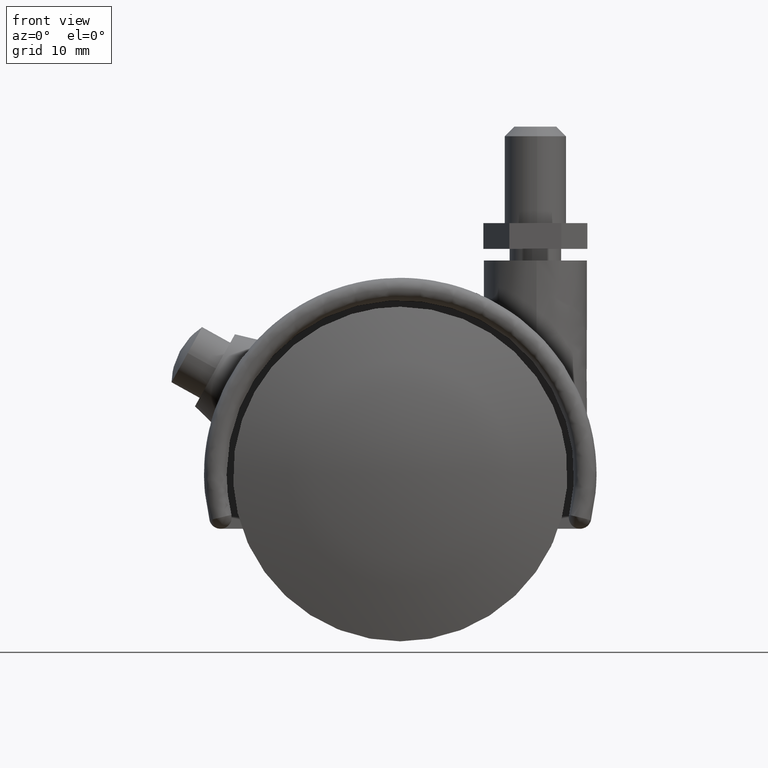
[diagram: clean part render]
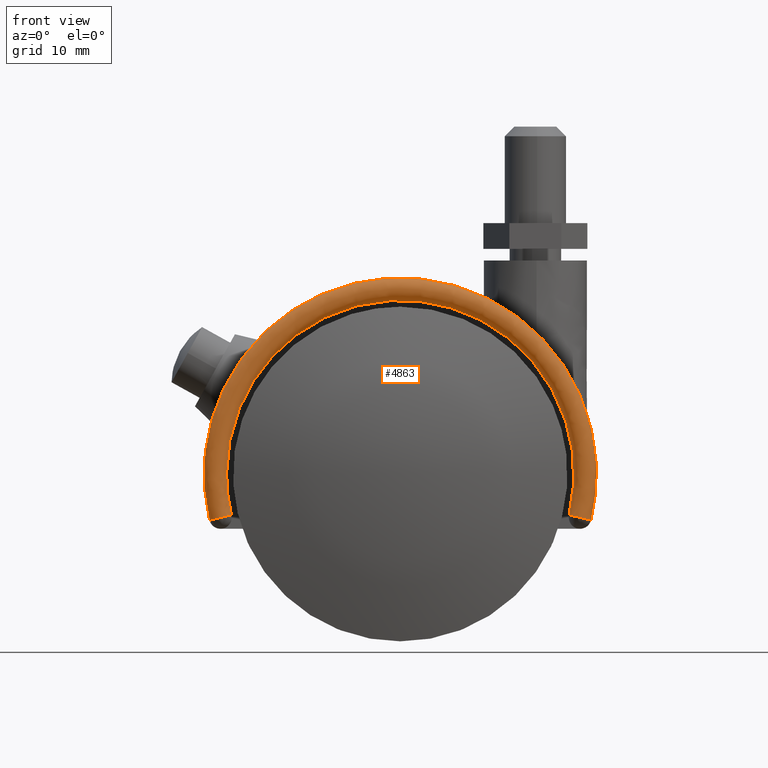
[diagram: same view with one face highlighted and labeled with its STEP entity id]
A machine part, front view. The second image highlights one B-rep face of the part: STEP entity #4863.
In plain terms, the highlighted face is a freeform B-spline surface patch.
Its self-contained STEP definition (entity closure, byte-faithful):
#4548=CARTESIAN_POINT('',(26.245293393879450,-17.100000000000001,-6.339130434782610));
#4549=VERTEX_POINT('',#4548);
#4550=CARTESIAN_POINT('',(29.647461056049000,-17.100000000000001,-7.160869565217389));
#4551=VERTEX_POINT('',#4550);
#4567=CARTESIAN_POINT('',(26.245293393879471,-17.100000000000001,-6.339130434782607));
#4568=CARTESIAN_POINT('',(26.245293393879471,-18.850000000000001,-6.339130434782606));
#4569=CARTESIAN_POINT('',(27.946377224964252,-18.850000000000001,-6.750000000000000));
#4570=CARTESIAN_POINT('',(29.647461056049032,-18.850000000000001,-7.160869565217391));
#4571=CARTESIAN_POINT('',(29.647461056049028,-17.100000000000001,-7.160869565217392));
#4579=(BOUNDED_CURVE()B_SPLINE_CURVE(2,(#4567,#4568,#4569,#4570,#4571),.UNSPECIFIED.,.F.,.U.)B_SPLINE_CURVE_WITH_KNOTS((3,2,3),(0.0,0.500000000000000,1.0),.UNSPECIFIED.)CURVE()GEOMETRIC_REPRESENTATION_ITEM()RATIONAL_B_SPLINE_CURVE((1.0,0.707106781186547,1.0,0.707106781186547,1.0))REPRESENTATION_ITEM(''));
#4580=EDGE_CURVE('',#4549,#4551,#4579,.T.);
#4686=CARTESIAN_POINT('',(-29.647461056049000,-17.100000000000001,-7.160869565217389));
#4687=VERTEX_POINT('',#4686);
#4688=CARTESIAN_POINT('',(-26.245293393879450,-17.100000000000001,-6.339130434782610));
#4689=VERTEX_POINT('',#4688);
#4705=CARTESIAN_POINT('',(-29.647461056049028,-17.100000000000001,-7.160869565217392));
#4706=CARTESIAN_POINT('',(-29.647461056049032,-18.850000000000001,-7.160869565217391));
#4707=CARTESIAN_POINT('',(-27.946377224964252,-18.850000000000001,-6.750000000000000));
#4708=CARTESIAN_POINT('',(-26.245293393879471,-18.850000000000001,-6.339130434782606));
#4709=CARTESIAN_POINT('',(-26.245293393879471,-17.100000000000001,-6.339130434782607));
#4717=(BOUNDED_CURVE()B_SPLINE_CURVE(2,(#4705,#4706,#4707,#4708,#4709),.UNSPECIFIED.,.F.,.U.)B_SPLINE_CURVE_WITH_KNOTS((3,2,3),(0.0,0.500000000000000,1.0),.UNSPECIFIED.)CURVE()GEOMETRIC_REPRESENTATION_ITEM()RATIONAL_B_SPLINE_CURVE((1.0,0.707106781186547,1.0,0.707106781186547,1.0))REPRESENTATION_ITEM(''));
#4718=EDGE_CURVE('',#4687,#4689,#4717,.T.);
#4792=CARTESIAN_POINT('',(-25.185691554705365,-16.851605150255413,-9.779470401126590));
#4793=CARTESIAN_POINT('',(-39.473844677437235,-16.851605150255409,27.017718268115608));
#4794=CARTESIAN_POINT('',(0.0,-16.851605150255413,27.017718268115608));
#4795=CARTESIAN_POINT('',(39.473844677437235,-16.851605150255409,27.017718268115608));
#4796=CARTESIAN_POINT('',(25.185691554705365,-16.851605150255413,-9.779470401126590));
#4797=CARTESIAN_POINT('',(-24.920258420872617,-18.837361050155266,-9.676404123587325));
#4798=CARTESIAN_POINT('',(-39.057828056476026,-18.837361050155270,26.732977322514046));
#4799=CARTESIAN_POINT('',(0.0,-18.837361050155266,26.732977322514053));
#4800=CARTESIAN_POINT('',(39.057828056476026,-18.837361050155270,26.732977322514046));
#4801=CARTESIAN_POINT('',(24.920258420872617,-18.837361050155266,-9.676404123587325));
#4802=CARTESIAN_POINT('',(-26.790260217185949,-18.849965456498239,-10.402515899290510));
#4803=CARTESIAN_POINT('',(-41.988704911450078,-18.849965456498239,28.739004498060265));
#4804=CARTESIAN_POINT('',(0.0,-18.849965456498239,28.739004498060272));
#4805=CARTESIAN_POINT('',(41.988704911450078,-18.849965456498239,28.739004498060265));
#4806=CARTESIAN_POINT('',(26.790260217185949,-18.849965456498239,-10.402515899290510));
#4807=CARTESIAN_POINT('',(-28.682797138259911,-18.862721756743156,-11.137377944371982));
#4808=CARTESIAN_POINT('',(-44.954901345108517,-18.862721756743149,30.769206020798681));
#4809=CARTESIAN_POINT('',(0.0,-18.862721756743156,30.769206020798681));
#4810=CARTESIAN_POINT('',(44.954901345108517,-18.862721756743149,30.769206020798681));
#4811=CARTESIAN_POINT('',(28.682797138259911,-18.862721756743156,-11.137377944371982));
#4812=CARTESIAN_POINT('',(-28.415492312924819,-16.852832187587520,-11.033584898953125));
#4813=CARTESIAN_POINT('',(-44.535951198995285,-16.852832187587524,30.482457235405022));
#4814=CARTESIAN_POINT('',(0.0,-16.852832187587520,30.482457235405011));
#4815=CARTESIAN_POINT('',(44.535951198995285,-16.852832187587524,30.482457235405022));
#4816=CARTESIAN_POINT('',(28.415492312924819,-16.852832187587520,-11.033584898953125));
#4824=(BOUNDED_SURFACE()B_SPLINE_SURFACE(2,2,((#4792,#4797,#4802,#4807,#4812),(#4793,#4798,#4803,#4808,#4813),(#4794,#4799,#4804,#4809,#4814),(#4795,#4800,#4805,#4810,#4815),(#4796,#4801,#4806,#4811,#4816)),.UNSPECIFIED.,.F.,.F.,.U.)B_SPLINE_SURFACE_WITH_KNOTS((3,2,3),(3,2,3),(0.0,64.300535283032460,128.601070566064890),(0.0,3.182820210840519,6.390598249175420),.UNSPECIFIED.)GEOMETRIC_REPRESENTATION_ITEM()RATIONAL_B_SPLINE_SURFACE(((0.987979751623804,0.653411634110615,1.0,0.650693889445690,0.993268612192045),(0.558027076611520,0.369057547391458,0.564816308931806,0.367522520881196,0.561014311316129),(0.987979751623804,0.653411634110615,1.0,0.650693889445690,0.993268612192045),(0.558027076611520,0.369057547391458,0.564816308931806,0.367522520881196,0.561014311316129),(0.987979751623804,0.653411634110615,1.0,0.650693889445690,0.993268612192045)))REPRESENTATION_ITEM('')SURFACE());
#4825=CARTESIAN_POINT('',(-29.647461056049011,-17.100000000000001,-7.160869565217417));
#4826=CARTESIAN_POINT('',(-34.573825898210522,-17.099999999999998,13.235286023945019));
#4827=CARTESIAN_POINT('',(-17.286912949105261,-17.100000000000001,25.127925515053111));
#4828=CARTESIAN_POINT('',(1.040834E-014,-17.099999999999998,37.020565006161192));
#4829=CARTESIAN_POINT('',(17.286912949105272,-17.100000000000001,25.127925515053100));
#4830=CARTESIAN_POINT('',(34.573825898210515,-17.099999999999998,13.235286023945019));
#4831=CARTESIAN_POINT('',(29.647461056049021,-17.100000000000001,-7.160869565217403));
#4839=(BOUNDED_CURVE()B_SPLINE_CURVE(2,(#4825,#4826,#4827,#4828,#4829,#4830,#4831),.UNSPECIFIED.,.F.,.U.)B_SPLINE_CURVE_WITH_KNOTS((3,2,2,3),(0.0,0.333333333333333,0.666666666666667,1.0),.UNSPECIFIED.)CURVE()GEOMETRIC_REPRESENTATION_ITEM()RATIONAL_B_SPLINE_CURVE((1.0,0.823866410329610,1.0,0.823866410329610,1.0,0.823866410329610,1.0))REPRESENTATION_ITEM(''));
#4840=EDGE_CURVE('',#4687,#4551,#4839,.T.);
#4841=ORIENTED_EDGE('',*,*,#4840,.F.);
#4842=ORIENTED_EDGE('',*,*,#4718,.T.);
#4843=CARTESIAN_POINT('',(26.245293393879461,-17.100000000000001,-6.339130434782631));
#4844=CARTESIAN_POINT('',(30.606337680383096,-17.099999999999998,11.716482709721818));
#4845=CARTESIAN_POINT('',(15.303168840191541,-17.100000000000001,22.244393078899471));
#4846=CARTESIAN_POINT('',(-6.938894E-015,-17.099999999999998,32.772303448077125));
#4847=CARTESIAN_POINT('',(-15.303168840191550,-17.100000000000001,22.244393078899460));
#4848=CARTESIAN_POINT('',(-30.606337680383071,-17.099999999999998,11.716482709721818));
#4849=CARTESIAN_POINT('',(-26.245293393879461,-17.100000000000001,-6.339130434782619));
#4857=(BOUNDED_CURVE()B_SPLINE_CURVE(2,(#4843,#4844,#4845,#4846,#4847,#4848,#4849),.UNSPECIFIED.,.F.,.U.)B_SPLINE_CURVE_WITH_KNOTS((3,2,2,3),(0.0,0.333333333333333,0.666666666666667,1.0),.UNSPECIFIED.)CURVE()GEOMETRIC_REPRESENTATION_ITEM()RATIONAL_B_SPLINE_CURVE((1.0,0.823866410329610,1.0,0.823866410329610,1.0,0.823866410329610,1.0))REPRESENTATION_ITEM(''));
#4858=EDGE_CURVE('',#4549,#4689,#4857,.T.);
#4859=ORIENTED_EDGE('',*,*,#4858,.F.);
#4860=ORIENTED_EDGE('',*,*,#4580,.T.);
#4861=EDGE_LOOP('',(#4841,#4842,#4859,#4860));
#4862=FACE_OUTER_BOUND('',#4861,.T.);
#4863=ADVANCED_FACE('',(#4862),#4824,.T.);